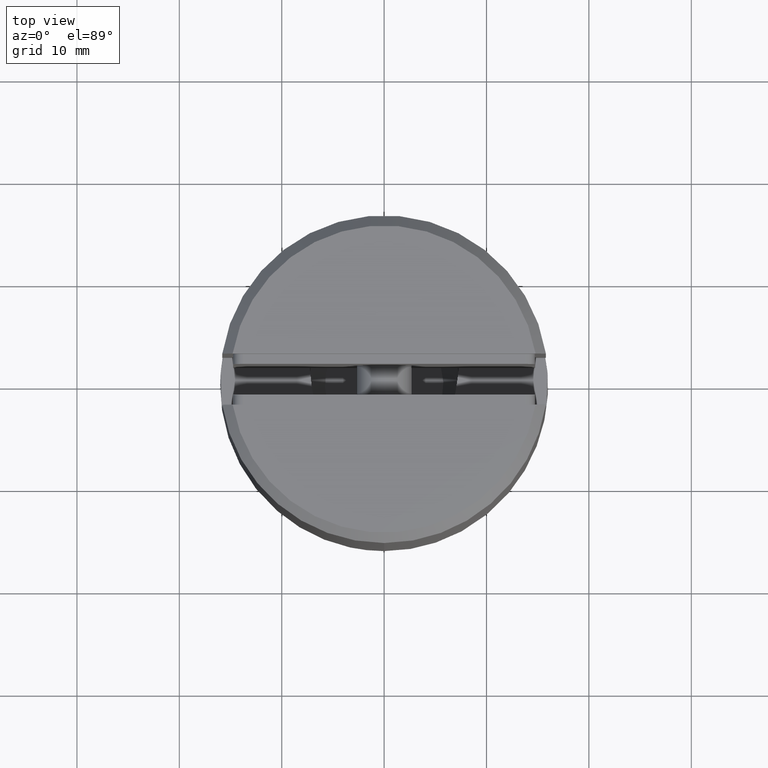
[diagram: clean part render]
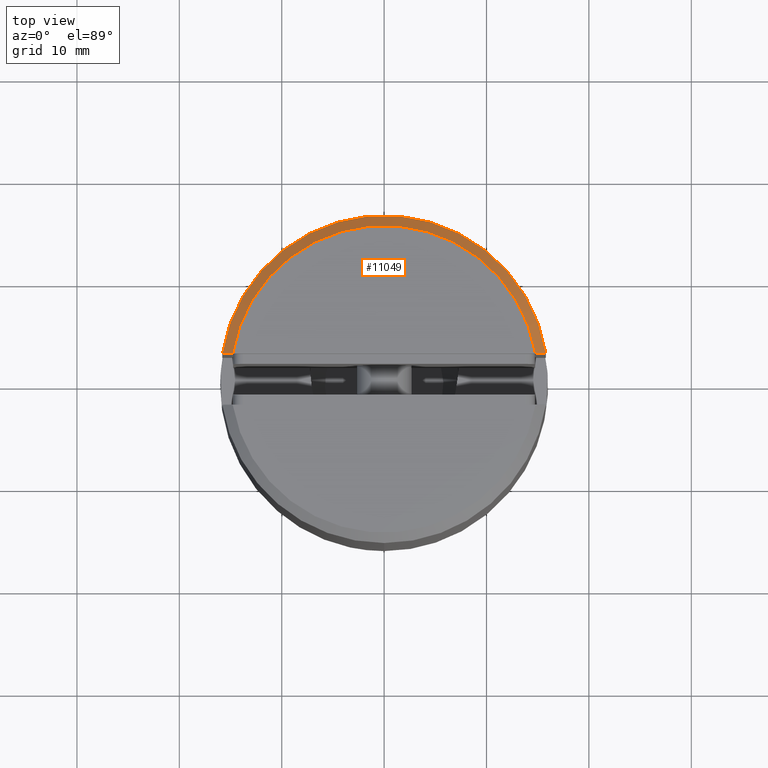
[diagram: same view with one face highlighted and labeled with its STEP entity id]
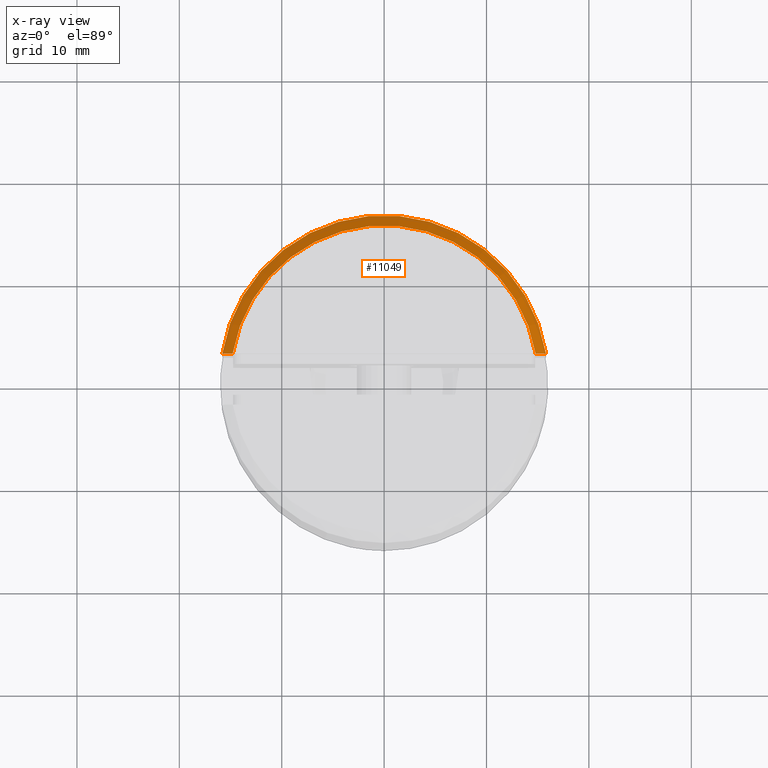
[diagram: x-ray of the same camera — body ghosted, the highlighted face saturated]
A machine part, top view. The second image highlights one B-rep face of the part: STEP entity #11049.
The next image is the same camera in x-ray: the body ghosted, the highlighted face saturated — about 0% of this face is hidden behind the body in this view.
In plain terms, the highlighted conical surface has half-angle 45 deg.
Its self-contained STEP definition (entity closure, byte-faithful):
#571 = EDGE_CURVE ( 'NONE', #7553, #15724, #4110, .T. ) ;
#1420 = EDGE_LOOP ( 'NONE', ( #13407, #19016, #10717, #3223 ) ) ;
#1538 = DIRECTION ( 'NONE',  ( 0.000000000000000000, 0.000000000000000000, -1.000000000000000000 ) ) ;
#1754 = VERTEX_POINT ( 'NONE', #9399 ) ;
#2319 = VERTEX_POINT ( 'NONE', #13252 ) ;
#3223 = ORIENTED_EDGE ( 'NONE', *, *, #571, .F. ) ;
#3795 = CARTESIAN_POINT ( 'NONE',  ( -14.79019945774903455, 2.500000000000000444, 25.00000000000000000 ) ) ;
#4110 = CIRCLE ( 'NONE', #4186, 14.99999999999999645 ) ;
#4186 = AXIS2_PLACEMENT_3D ( 'NONE', #9718, #14438, #19202 ) ;
#4217 = EDGE_CURVE ( 'NONE', #1754, #7553, #9566, .T. ) ;
#4321 = EDGE_CURVE ( 'NONE', #15724, #2319, #16029, .T. ) ;
#4448 = DIRECTION ( 'NONE',  ( -1.000000000000000000, 0.000000000000000000, 0.000000000000000000 ) ) ;
#6167 = CARTESIAN_POINT ( 'NONE',  ( -14.79019945774903455, 2.500000000000000444, 25.00000000000000000 ) ) ;
#7172 = CARTESIAN_POINT ( 'NONE',  ( 14.79019945774903633, 2.500000000000000444, 25.00000000000000000 ) ) ;
#7553 = VERTEX_POINT ( 'NONE', #7172 ) ;
#9167 = AXIS2_PLACEMENT_3D ( 'NONE', #18475, #1538, #4448 ) ;
#9399 = CARTESIAN_POINT ( 'NONE',  ( 15.80348062927910924, 2.500000000000000444, 23.99999999999998934 ) ) ;
#9566 = B_SPLINE_CURVE_WITH_KNOTS ( 'NONE', 3,
 ( #14693, #19249, #17668, #19449 ),
 .UNSPECIFIED., .F., .F.,
 ( 4, 4 ),
 ( 0.000000000000000000, 0.001423635744345223830 ),
 .UNSPECIFIED. ) ;
#9718 = CARTESIAN_POINT ( 'NONE',  ( 0.000000000000000000, 0.000000000000000000, 25.00000000000000000 ) ) ;
#10111 = CARTESIAN_POINT ( 'NONE',  ( -15.46585946293021863, 2.500000000000000444, 24.33347434765182271 ) ) ;
#10717 = ORIENTED_EDGE ( 'NONE', *, *, #4321, .F. ) ;
#11038 = CARTESIAN_POINT ( 'NONE',  ( 0.000000000000000000, 0.000000000000000000, 23.99999999999998934 ) ) ;
#11049 = ADVANCED_FACE ( 'NONE', ( #13874 ), #17013, .T. ) ;
#12382 = DIRECTION ( 'NONE',  ( 1.000000000000000000, 0.000000000000000000, 0.000000000000000000 ) ) ;
#13252 = CARTESIAN_POINT ( 'NONE',  ( -15.80348062927910924, 2.500000000000000444, 23.99999999999998934 ) ) ;
#13407 = ORIENTED_EDGE ( 'NONE', *, *, #4217, .F. ) ;
#13874 = FACE_OUTER_BOUND ( 'NONE', #1420, .T. ) ;
#14438 = DIRECTION ( 'NONE',  ( 0.000000000000000000, 0.000000000000000000, 1.000000000000000000 ) ) ;
#14693 = CARTESIAN_POINT ( 'NONE',  ( 15.80348062927910924, 2.500000000000000444, 23.99999999999998934 ) ) ;
#14837 = EDGE_CURVE ( 'NONE', #2319, #1754, #16478, .T. ) ;
#15724 = VERTEX_POINT ( 'NONE', #6167 ) ;
#16029 = B_SPLINE_CURVE_WITH_KNOTS ( 'NONE', 3,
 ( #3795, #17742, #10111, #19319 ),
 .UNSPECIFIED., .F., .F.,
 ( 4, 4 ),
 ( 0.000000000000000000, 0.001423635744345227083 ),
 .UNSPECIFIED. ) ;
#16478 = CIRCLE ( 'NONE', #19287, 16.00000000000000000 ) ;
#17013 = CONICAL_SURFACE ( 'NONE', #9167, 14.99999999999999645, 0.7853981633974447263 ) ;
#17668 = CARTESIAN_POINT ( 'NONE',  ( 15.12810841561664787, 2.500000000000000444, 24.66681727430519544 ) ) ;
#17742 = CARTESIAN_POINT ( 'NONE',  ( -15.12810841561664610, 2.500000000000000444, 24.66681727430519544 ) ) ;
#18475 = CARTESIAN_POINT ( 'NONE',  ( 0.000000000000000000, 0.000000000000000000, 25.00000000000000000 ) ) ;
#18632 = DIRECTION ( 'NONE',  ( 0.000000000000000000, 0.000000000000000000, -1.000000000000000000 ) ) ;
#19016 = ORIENTED_EDGE ( 'NONE', *, *, #14837, .F. ) ;
#19202 = DIRECTION ( 'NONE',  ( 1.000000000000000000, 0.000000000000000000, 0.000000000000000000 ) ) ;
#19249 = CARTESIAN_POINT ( 'NONE',  ( 15.46585946293022218, 2.500000000000000444, 24.33347434765182271 ) ) ;
#19287 = AXIS2_PLACEMENT_3D ( 'NONE', #11038, #18632, #12382 ) ;
#19319 = CARTESIAN_POINT ( 'NONE',  ( -15.80348062927910924, 2.500000000000000444, 23.99999999999998934 ) ) ;
#19449 = CARTESIAN_POINT ( 'NONE',  ( 14.79019945774903633, 2.500000000000000444, 25.00000000000000000 ) ) ;